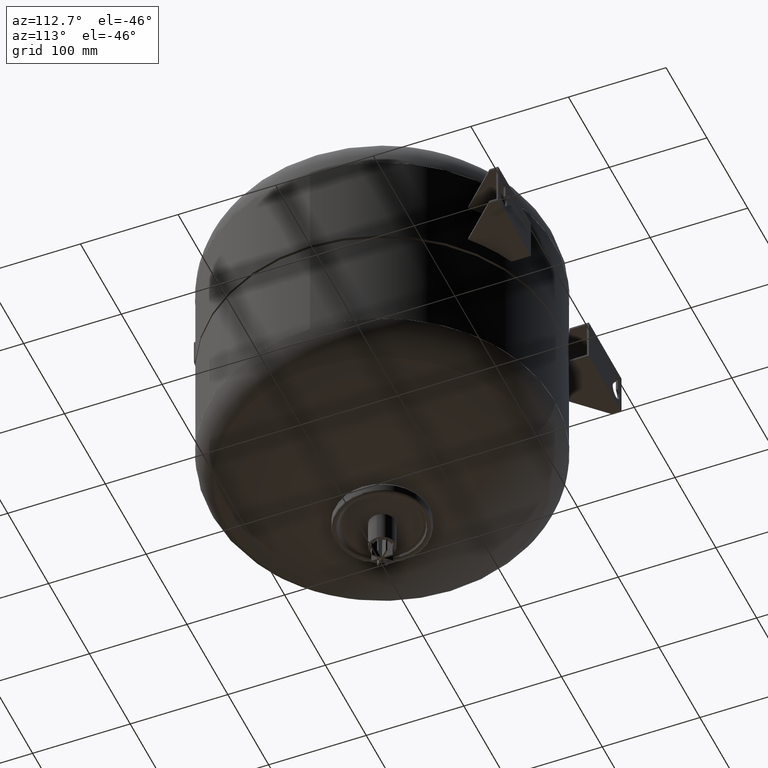
[diagram: clean part render]
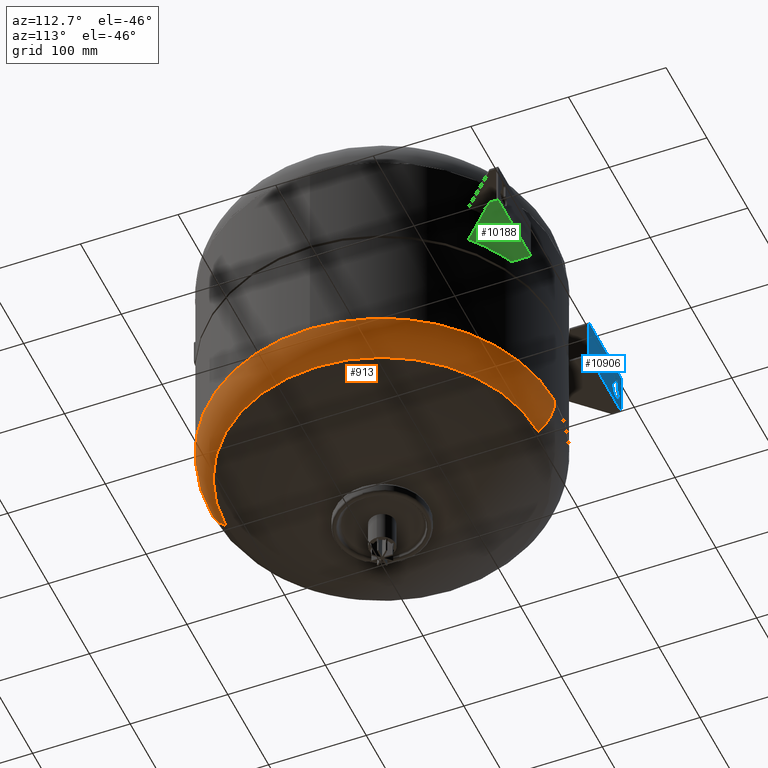
[diagram: same view with three faces highlighted in distinct colors, each labeled with its STEP entity id]
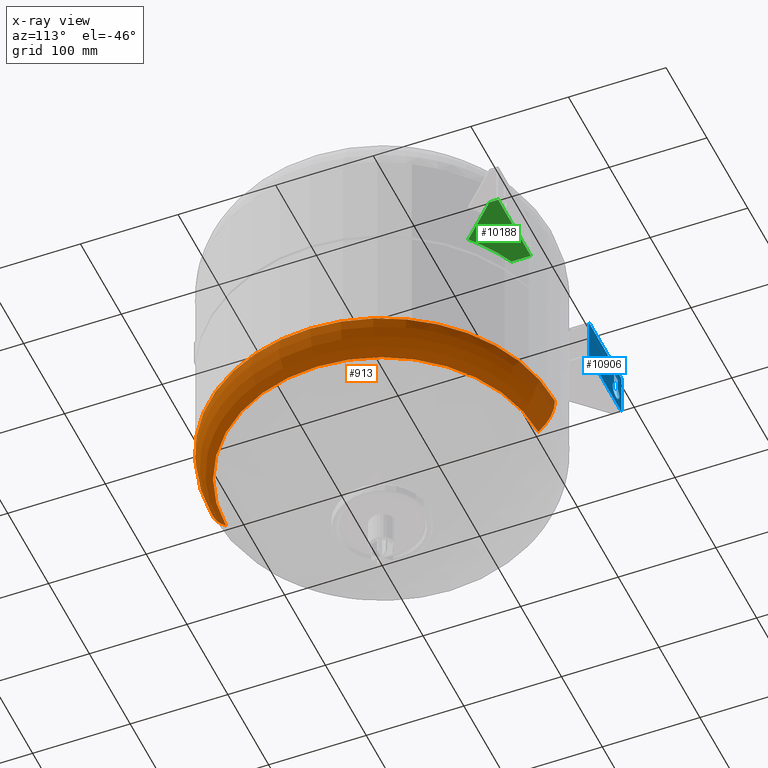
[diagram: x-ray of the same camera — body ghosted, the three highlighted faces saturated]
A machine part, auxiliary view with three faces highlighted in distinct colors.
The next image is the same camera in x-ray (body ghosted, the three faces saturated) — at least one of them is partly hidden behind the body in this view.
Their STEP definitions:

[orange] entity #913 — the highlighted toroidal blend (fillet) surface has major radius 132 mm and minor (blend) radius 45 mm.
#799=CARTESIAN_POINT('',(177.00000000000003,2.170632E-014,142.83241941093965));
#800=VERTEX_POINT('',#799);
#807=CARTESIAN_POINT('',(-2.348140E-014,177.00000000000003,142.83241941093971));
#808=VERTEX_POINT('',#807);
#809=CARTESIAN_POINT('',(-3.325595E-018,3.078405E-017,142.83241941093965));
#810=DIRECTION('',(0.0,0.0,1.0));
#811=DIRECTION('',(-1.0,0.0,0.0));
#812=AXIS2_PLACEMENT_3D('',#809,#810,#811);
#813=CIRCLE('',#812,177.00000000000003);
#814=EDGE_CURVE('',#800,#808,#813,.T.);
#831=CARTESIAN_POINT('',(-1.805872E-015,-177.00000000000003,142.83241941093959));
#832=VERTEX_POINT('',#831);
#833=CARTESIAN_POINT('',(-2.506731E-015,-159.88732394366201,107.51532492029307));
#834=VERTEX_POINT('',#833);
#835=CARTESIAN_POINT('',(-1.805872E-015,-132.00000000000006,142.83241941093962));
#836=DIRECTION('',(1.0,0.0,0.0));
#837=DIRECTION('',(0.0,-1.0,0.0));
#838=AXIS2_PLACEMENT_3D('',#835,#836,#837);
#839=CIRCLE('',#838,45.0);
#840=EDGE_CURVE('',#832,#834,#839,.T.);
#850=CARTESIAN_POINT('',(-2.208663E-014,159.88732394366201,107.51532492029312));
#851=VERTEX_POINT('',#850);
#852=CARTESIAN_POINT('',(-1.797068E-014,132.00000000000006,142.83241941093968));
#853=DIRECTION('',(-1.0,0.0,0.0));
#854=DIRECTION('',(0.0,1.0,0.0));
#855=AXIS2_PLACEMENT_3D('',#852,#853,#854);
#856=CIRCLE('',#855,45.0);
#857=EDGE_CURVE('',#808,#851,#856,.T.);
#885=CARTESIAN_POINT('',(-7.041844E-016,6.518429E-015,107.5153249202931));
#886=DIRECTION('',(0.0,0.0,1.0));
#887=DIRECTION('',(-1.0,0.0,0.0));
#888=AXIS2_PLACEMENT_3D('',#885,#886,#887);
#889=CIRCLE('',#888,159.88732394366201);
#890=EDGE_CURVE('',#834,#851,#889,.T.);
#895=CARTESIAN_POINT('',(-1.805872E-015,3.078405E-017,142.83241941093965));
#896=DIRECTION('',(1.984475E-017,-1.836970E-016,1.0));
#897=DIRECTION('',(0.0,-1.0,0.0));
#898=AXIS2_PLACEMENT_3D('',#895,#896,#897);
#899=TOROIDAL_SURFACE('',#898,132.00000000000006,45.0);
#900=ORIENTED_EDGE('',*,*,#840,.T.);
#901=ORIENTED_EDGE('',*,*,#890,.T.);
#902=ORIENTED_EDGE('',*,*,#857,.F.);
#903=ORIENTED_EDGE('',*,*,#814,.F.);
#904=CARTESIAN_POINT('',(-3.325595E-018,3.078405E-017,142.83241941093965));
#905=DIRECTION('',(0.0,0.0,1.0));
#906=DIRECTION('',(-1.0,0.0,0.0));
#907=AXIS2_PLACEMENT_3D('',#904,#905,#906);
#908=CIRCLE('',#907,177.00000000000003);
#909=EDGE_CURVE('',#832,#800,#908,.T.);
#910=ORIENTED_EDGE('',*,*,#909,.F.);
#911=EDGE_LOOP('',(#900,#901,#902,#903,#910));
#912=FACE_OUTER_BOUND('',#911,.T.);
#913=ADVANCED_FACE('',(#912),#899,.T.);

[blue] entity #10906 — the highlighted face is a freeform B-spline surface patch.
#10390=CARTESIAN_POINT('',(-142.0,182.0,292.36437827765496));
#10391=VERTEX_POINT('',#10390);
#10398=CARTESIAN_POINT('',(-142.0,182.0,303.74999999999409));
#10399=VERTEX_POINT('',#10398);
#10400=CARTESIAN_POINT('',(-142.0,182.0,303.74999999999409));
#10401=DIRECTION('',(0.0,0.0,-1.0));
#10402=VECTOR('',#10401,11.385621722339124);
#10403=LINE('',#10400,#10402);
#10404=EDGE_CURVE('',#10399,#10391,#10403,.T.);
#10430=CARTESIAN_POINT('',(-133.0,182.0,303.74999999999409));
#10431=VERTEX_POINT('',#10430);
#10432=CARTESIAN_POINT('',(-137.5,182.0,303.74999999999409));
#10433=DIRECTION('',(0.0,-1.0,0.0));
#10434=DIRECTION('',(0.0,0.0,1.0));
#10435=AXIS2_PLACEMENT_3D('',#10432,#10433,#10434);
#10436=CIRCLE('',#10435,4.5);
#10437=EDGE_CURVE('',#10431,#10399,#10436,.T.);
#10462=CARTESIAN_POINT('',(-133.0,182.0,292.36437827765621));
#10463=VERTEX_POINT('',#10462);
#10464=CARTESIAN_POINT('',(-133.0,182.0,292.36437827765621));
#10465=DIRECTION('',(0.0,0.0,1.0));
#10466=VECTOR('',#10465,11.385621722337874);
#10467=LINE('',#10464,#10466);
#10468=EDGE_CURVE('',#10463,#10431,#10467,.T.);
#10492=CARTESIAN_POINT('',(-137.49999999999909,182.0,285.74999999999409));
#10493=DIRECTION('',(0.0,-1.0,0.0));
#10494=DIRECTION('',(1.377663E-013,0.0,-1.0));
#10495=AXIS2_PLACEMENT_3D('',#10492,#10493,#10494);
#10496=CIRCLE('',#10495,7.999999999999998);
#10497=EDGE_CURVE('',#10391,#10463,#10496,.T.);
#10697=CARTESIAN_POINT('',(-151.0,182.0,270.5));
#10698=VERTEX_POINT('',#10697);
#10705=CARTESIAN_POINT('',(-71.0,182.0,270.5));
#10706=VERTEX_POINT('',#10705);
#10707=CARTESIAN_POINT('',(-71.0,182.0,270.5));
#10708=DIRECTION('',(-1.0,0.0,0.0));
#10709=VECTOR('',#10708,80.0);
#10710=LINE('',#10707,#10709);
#10711=EDGE_CURVE('',#10706,#10698,#10710,.T.);
#10794=CARTESIAN_POINT('',(-71.0,182.0,315.5));
#10795=VERTEX_POINT('',#10794);
#10796=CARTESIAN_POINT('',(-71.0,182.0,315.5));
#10797=DIRECTION('',(0.0,0.0,-1.0));
#10798=VECTOR('',#10797,45.0);
#10799=LINE('',#10796,#10798);
#10800=EDGE_CURVE('',#10795,#10706,#10799,.T.);
#10827=CARTESIAN_POINT('',(-151.0,182.0,315.5));
#10828=VERTEX_POINT('',#10827);
#10829=CARTESIAN_POINT('',(-71.0,182.0,315.5));
#10830=DIRECTION('',(-1.0,0.0,0.0));
#10831=VECTOR('',#10830,80.0);
#10832=LINE('',#10829,#10831);
#10833=EDGE_CURVE('',#10795,#10828,#10832,.T.);
#10861=CARTESIAN_POINT('',(-151.0,182.0,315.5));
#10862=DIRECTION('',(0.0,0.0,-1.0));
#10863=VECTOR('',#10862,45.0);
#10864=LINE('',#10861,#10863);
#10865=EDGE_CURVE('',#10828,#10698,#10864,.T.);
#10889=CARTESIAN_POINT('',(-151.0,182.0,270.5));
#10890=CARTESIAN_POINT('',(-71.0,182.0,270.5));
#10891=CARTESIAN_POINT('',(-151.0,182.0,315.5));
#10892=CARTESIAN_POINT('',(-71.0,182.0,315.5));
#10893=B_SPLINE_SURFACE_WITH_KNOTS('',1,1,((#10889,#10891),(#10890,#10892)),.UNSPECIFIED.,.F.,.F.,.U.,(2,2),(2,2),(0.0,80.0),(0.0,45.0),.UNSPECIFIED.);
#10894=ORIENTED_EDGE('',*,*,#10865,.F.);
#10895=ORIENTED_EDGE('',*,*,#10833,.F.);
#10896=ORIENTED_EDGE('',*,*,#10800,.T.);
#10897=ORIENTED_EDGE('',*,*,#10711,.T.);
#10898=EDGE_LOOP('',(#10894,#10895,#10896,#10897));
#10899=FACE_OUTER_BOUND('',#10898,.T.);
#10900=ORIENTED_EDGE('',*,*,#10468,.T.);
#10901=ORIENTED_EDGE('',*,*,#10437,.T.);
#10902=ORIENTED_EDGE('',*,*,#10404,.T.);
#10903=ORIENTED_EDGE('',*,*,#10497,.T.);
#10904=EDGE_LOOP('',(#10900,#10901,#10902,#10903));
#10905=FACE_BOUND('',#10904,.T.);
#10906=ADVANCED_FACE('',(#10899,#10905),#10893,.F.);

[green] entity #10188 — the highlighted planar face has unit normal (0, 0, -1).
#10058=CARTESIAN_POINT('',(113.6735737837013,135.67357378370127,270.5));
#10059=VERTEX_POINT('',#10058);
#10060=CARTESIAN_POINT('',(71.0,162.13574559608995,270.5));
#10061=VERTEX_POINT('',#10060);
#10062=CARTESIAN_POINT('',(5.684342E-014,-4.350819E-031,270.5));
#10063=DIRECTION('',(-4.887835E-018,-5.833810E-018,1.0));
#10064=DIRECTION('',(0.642223580698877,0.766517366009612,7.610799E-018));
#10065=AXIS2_PLACEMENT_3D('',#10062,#10063,#10064);
#10066=CIRCLE('',#10065,176.99999999999994);
#10067=EDGE_CURVE('',#10059,#10061,#10066,.T.);
#10131=CARTESIAN_POINT('',(151.0,173.0,270.5));
#10132=VERTEX_POINT('',#10131);
#10133=CARTESIAN_POINT('',(151.0,173.0,270.5));
#10134=DIRECTION('',(-0.707106781186547,-0.707106781186548,0.0));
#10135=VECTOR('',#10134,52.787538190008298);
#10136=LINE('',#10133,#10135);
#10137=EDGE_CURVE('',#10132,#10059,#10136,.T.);
#10157=CARTESIAN_POINT('',(71.0,182.0,270.5));
#10158=DIRECTION('',(0.0,0.0,-1.0));
#10159=DIRECTION('',(-1.0,0.0,0.0));
#10160=AXIS2_PLACEMENT_3D('',#10157,#10158,#10159);
#10161=PLANE('',#10160);
#10162=ORIENTED_EDGE('',*,*,#10137,.T.);
#10163=ORIENTED_EDGE('',*,*,#10067,.T.);
#10164=CARTESIAN_POINT('',(71.0,182.0,270.5));
#10165=VERTEX_POINT('',#10164);
#10166=CARTESIAN_POINT('',(71.0,182.0,270.5));
#10167=DIRECTION('',(0.0,-1.0,0.0));
#10168=VECTOR('',#10167,19.864254403910053);
#10169=LINE('',#10166,#10168);
#10170=EDGE_CURVE('',#10165,#10061,#10169,.T.);
#10171=ORIENTED_EDGE('',*,*,#10170,.F.);
#10172=CARTESIAN_POINT('',(151.0,182.0,270.5));
#10173=VERTEX_POINT('',#10172);
#10174=CARTESIAN_POINT('',(71.0,182.0,270.5));
#10175=DIRECTION('',(1.0,0.0,0.0));
#10176=VECTOR('',#10175,80.0);
#10177=LINE('',#10174,#10176);
#10178=EDGE_CURVE('',#10165,#10173,#10177,.T.);
#10179=ORIENTED_EDGE('',*,*,#10178,.T.);
#10180=CARTESIAN_POINT('',(151.0,182.0,270.5));
#10181=DIRECTION('',(0.0,-1.0,0.0));
#10182=VECTOR('',#10181,9.0);
#10183=LINE('',#10180,#10182);
#10184=EDGE_CURVE('',#10173,#10132,#10183,.T.);
#10185=ORIENTED_EDGE('',*,*,#10184,.T.);
#10186=EDGE_LOOP('',(#10162,#10163,#10171,#10179,#10185));
#10187=FACE_OUTER_BOUND('',#10186,.T.);
#10188=ADVANCED_FACE('',(#10187),#10161,.T.);